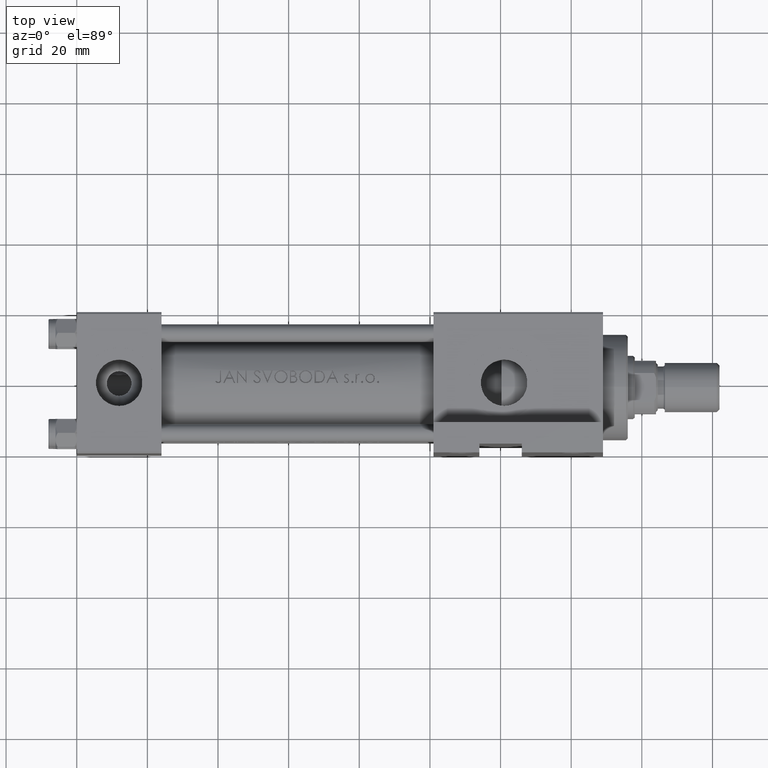
[diagram: clean part render]
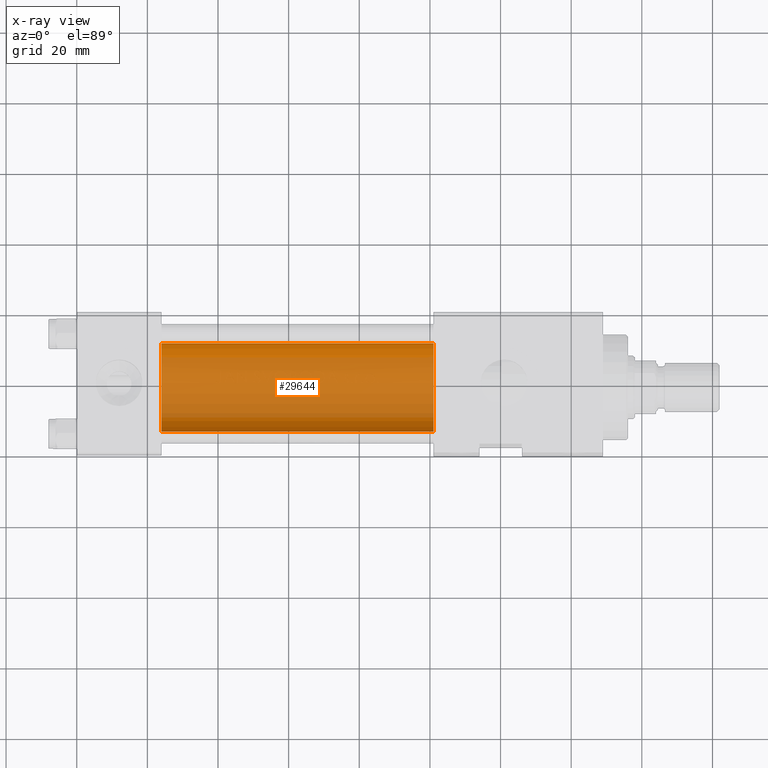
[diagram: x-ray — body ghosted, one internal face saturated and labeled with its STEP entity id]
A machine part, top view, then the same camera in x-ray: the body is ghosted and one INTERNAL B-rep face — a face not visible from any outside direction — is saturated and labeled: STEP entity #29644.
In plain terms, the highlighted cylindrical surface (partial cylindrical patch) has radius 12.5 mm, axis along (-1, -0, 0).
Its self-contained STEP definition (entity closure, byte-faithful):
#1909 = ORIENTED_EDGE ( 'NONE', *, *, #17853, .T. ) ;
#2076 = CARTESIAN_POINT ( 'NONE',  ( 101.0000000000000000, 0.000000000000000000, -1.000000000000007772 ) ) ;
#2232 = DIRECTION ( 'NONE',  ( 0.000000000000000000, 0.000000000000000000, 1.000000000000000000 ) ) ;
#2237 = CARTESIAN_POINT ( 'NONE',  ( 24.00000000000000000, 0.000000000000000000, -1.000000000000007772 ) ) ;
#2442 = ORIENTED_EDGE ( 'NONE', *, *, #33184, .F. ) ;
#3978 = EDGE_CURVE ( 'NONE', #18116, #28011, #32985, .T. ) ;
#5242 = CARTESIAN_POINT ( 'NONE',  ( 101.0000000000000000, 1.530808498934191127E-15, -13.50000000000000533 ) ) ;
#5518 = DIRECTION ( 'NONE',  ( -1.000000000000000000, -0.000000000000000000, -0.000000000000000000 ) ) ;
#6083 = ORIENTED_EDGE ( 'NONE', *, *, #3978, .T. ) ;
#6257 = LINE ( 'NONE', #17580, #48668 ) ;
#11688 = EDGE_CURVE ( 'NONE', #29200, #40138, #32439, .T. ) ;
#17424 = DIRECTION ( 'NONE',  ( 0.000000000000000000, 0.000000000000000000, -1.000000000000000000 ) ) ;
#17580 = CARTESIAN_POINT ( 'NONE',  ( 101.0000000000000000, 0.000000000000000000, 11.49999999999998934 ) ) ;
#17853 = EDGE_CURVE ( 'NONE', #28011, #40138, #6257, .T. ) ;
#18080 = FACE_OUTER_BOUND ( 'NONE', #47911, .T. ) ;
#18116 = VERTEX_POINT ( 'NONE', #39630 ) ;
#18399 = ORIENTED_EDGE ( 'NONE', *, *, #11688, .F. ) ;
#18938 = VECTOR ( 'NONE', #20603, 1000.000000000000000 ) ;
#20603 = DIRECTION ( 'NONE',  ( -1.000000000000000000, -0.000000000000000000, -0.000000000000000000 ) ) ;
#20880 = DIRECTION ( 'NONE',  ( 0.000000000000000000, 0.000000000000000000, -1.000000000000000000 ) ) ;
#21602 = CARTESIAN_POINT ( 'NONE',  ( 101.0000000000000000, 0.000000000000000000, -1.000000000000007772 ) ) ;
#23363 = AXIS2_PLACEMENT_3D ( 'NONE', #2076, #24059, #17424 ) ;
#24059 = DIRECTION ( 'NONE',  ( 1.000000000000000000, 0.000000000000000000, 0.000000000000000000 ) ) ;
#24414 = CARTESIAN_POINT ( 'NONE',  ( 24.00000000000000000, 0.000000000000000000, 11.49999999999998934 ) ) ;
#24875 = LINE ( 'NONE', #5242, #18938 ) ;
#28011 = VERTEX_POINT ( 'NONE', #39857 ) ;
#29200 = VERTEX_POINT ( 'NONE', #44672 ) ;
#29644 = ADVANCED_FACE ( 'NONE', ( #18080 ), #48265, .F. ) ;
#32439 = CIRCLE ( 'NONE', #47674, 12.49999999999999645 ) ;
#32985 = CIRCLE ( 'NONE', #23363, 12.49999999999999645 ) ;
#33184 = EDGE_CURVE ( 'NONE', #18116, #29200, #24875, .T. ) ;
#35982 = DIRECTION ( 'NONE',  ( 1.000000000000000000, 0.000000000000000000, 0.000000000000000000 ) ) ;
#36472 = DIRECTION ( 'NONE',  ( -1.000000000000000000, -0.000000000000000000, -0.000000000000000000 ) ) ;
#38871 = AXIS2_PLACEMENT_3D ( 'NONE', #21602, #36472, #2232 ) ;
#39630 = CARTESIAN_POINT ( 'NONE',  ( 101.0000000000000000, 1.530808498934191127E-15, -13.50000000000000533 ) ) ;
#39857 = CARTESIAN_POINT ( 'NONE',  ( 101.0000000000000000, 0.000000000000000000, 11.49999999999998934 ) ) ;
#40138 = VERTEX_POINT ( 'NONE', #24414 ) ;
#44672 = CARTESIAN_POINT ( 'NONE',  ( 24.00000000000000000, 1.530808498934191127E-15, -13.50000000000000533 ) ) ;
#47674 = AXIS2_PLACEMENT_3D ( 'NONE', #2237, #35982, #20880 ) ;
#47911 = EDGE_LOOP ( 'NONE', ( #2442, #6083, #1909, #18399 ) ) ;
#48265 = CYLINDRICAL_SURFACE ( 'NONE', #38871, 12.49999999999999645 ) ;
#48668 = VECTOR ( 'NONE', #5518, 1000.000000000000000 ) ;